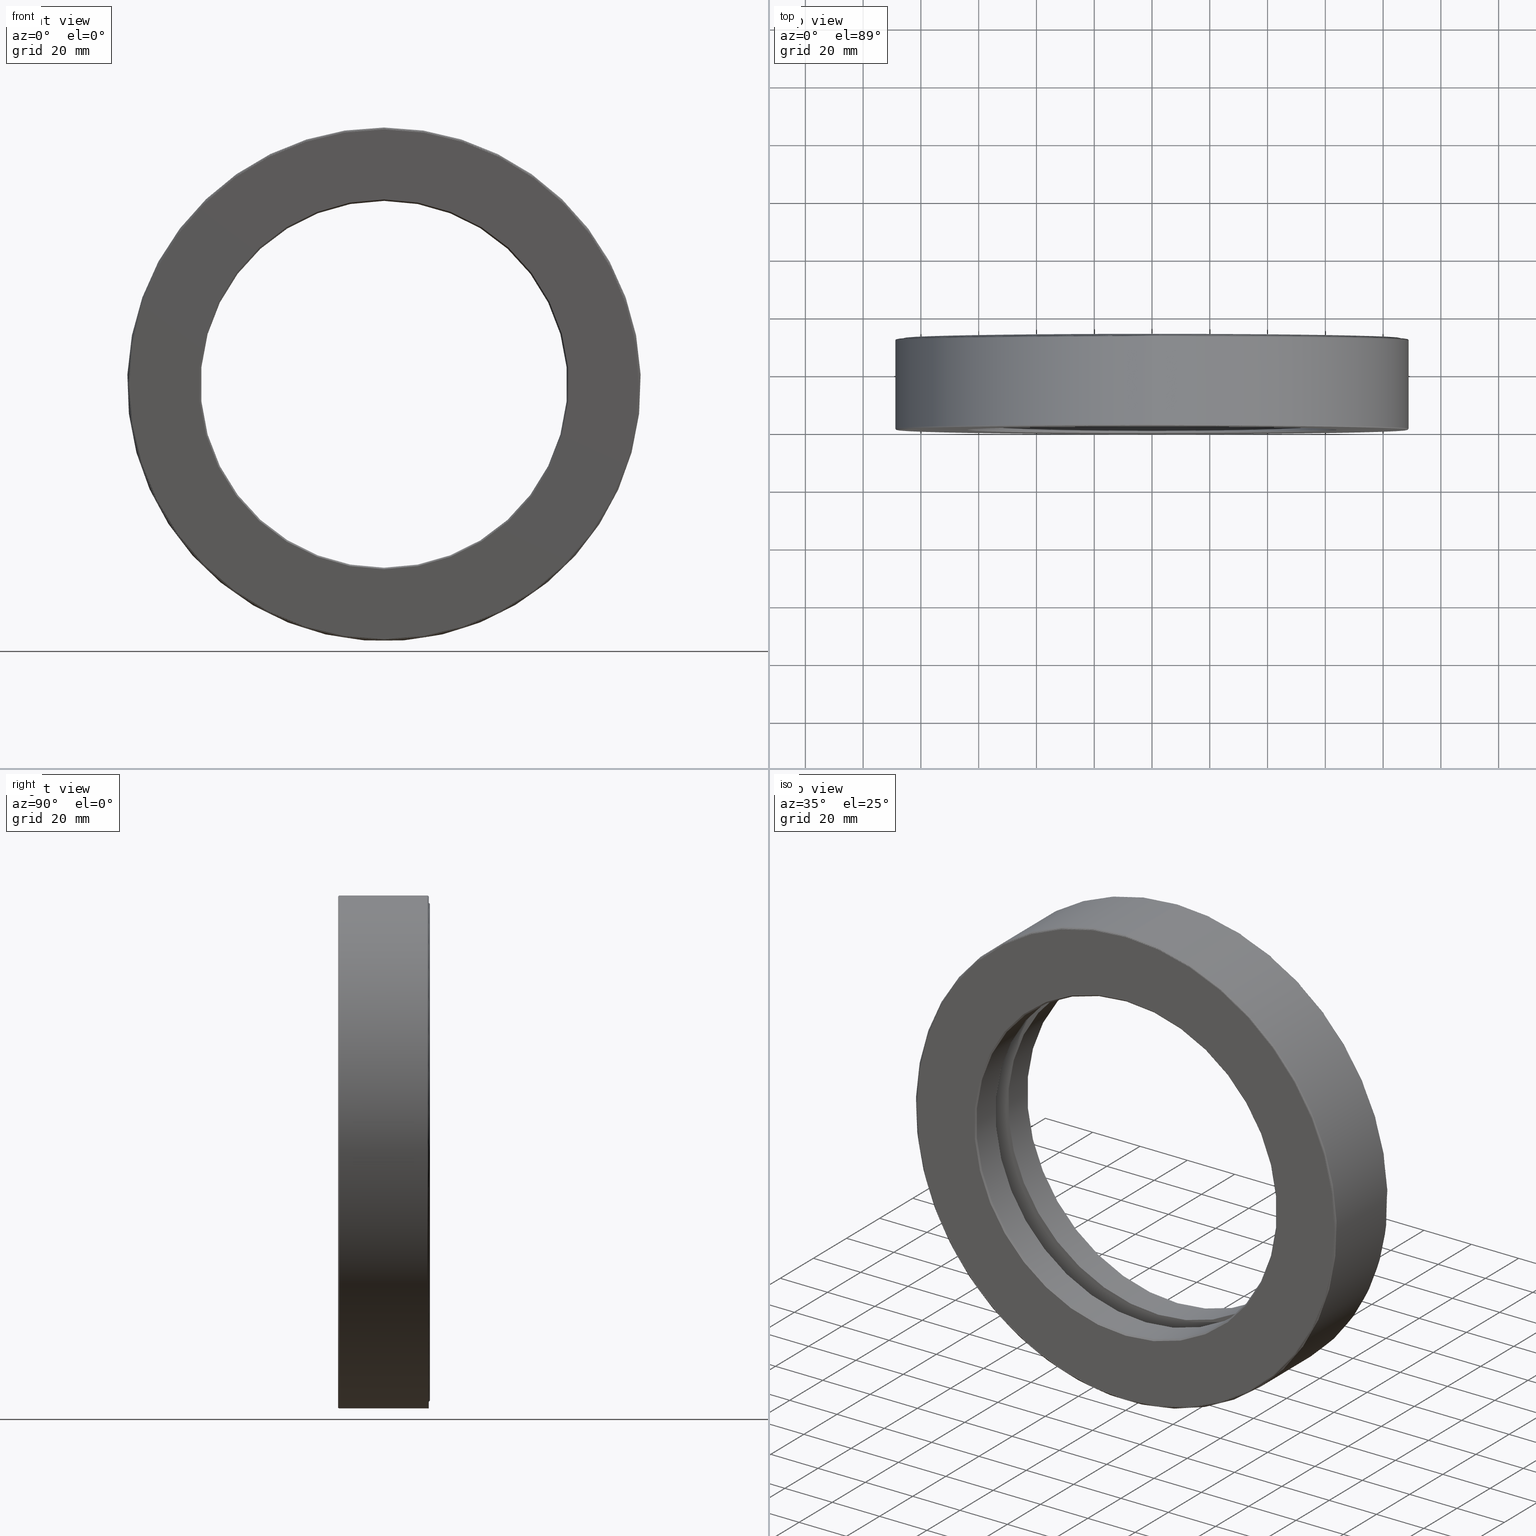
[diagram: canonical four-view strip — front | top / right | iso, engineering-drawing reading convention]
A machine part, canonical four-view strip (front | top / right | iso — engineering-drawing reading convention). The complete STEP part file that produces these views, byte-faithful:
ISO-10303-21;
HEADER;
FILE_DESCRIPTION (( 'STEP AP203' ),
    '1' );
FILE_NAME ('T-100-54.step',
    '2016-06-29T18:27:45',
    ( '' ),
    ( '' ),
    'SwSTEP 2.0',
    'SolidWorks 2016',
    '' );
FILE_SCHEMA (( 'CONFIG_CONTROL_DESIGN' ));
ENDSEC;

DATA;
#1 = EDGE_CURVE ( 'NONE', #511, #511, #290, .T. ) ;
#2 = CARTESIAN_POINT ( 'NONE',  ( 0.0000000000000000000, 0.7749999999999998000, 2.500000000000000000 ) ) ;
#3 = CIRCLE ( 'NONE', #49, 3.480000000000000000 ) ;
#4 = AXIS2_PLACEMENT_3D ( 'NONE', #592, #78, #175 ) ;
#5 =( CONVERSION_BASED_UNIT ( 'INCH', #418 ) LENGTH_UNIT ( ) NAMED_UNIT ( #334 ) );
#6 = ORIENTED_EDGE ( 'NONE', *, *, #187, .F. ) ;
#7 = ORIENTED_EDGE ( 'NONE', *, *, #490, .F. ) ;
#8 = CIRCLE ( 'NONE', #207, 3.420999999999999400 ) ;
#9 = CIRCLE ( 'NONE', #248, 3.484999999999999400 ) ;
#10 = CC_DESIGN_APPROVAL ( #588, ( #551 ) ) ;
#11 = EDGE_CURVE ( 'NONE', #58, #58, #204, .T. ) ;
#12 = ORIENTED_EDGE ( 'NONE', *, *, #11, .T. ) ;
#13 = CARTESIAN_POINT ( 'NONE',  ( -3.220999999999999200, 0.6249999999999997800, 0.0000000000000000000 ) ) ;
#14 = CALENDAR_DATE ( 2016, 29, 6 ) ;
#15 = APPROVAL_DATE_TIME ( #252, #588 ) ;
#16 = SECURITY_CLASSIFICATION ( '', '', #520 ) ;
#17 = AXIS2_PLACEMENT_3D ( 'NONE', #43, #243, #470 ) ;
#18 = DIRECTION ( 'NONE',  ( -0.0000000000000000000, 1.000000000000000000, 0.0000000000000000000 ) ) ;
#19 = EDGE_LOOP ( 'NONE', ( #370 ) ) ;
#20 = AXIS2_PLACEMENT_3D ( 'NONE', #461, #412, #320 ) ;
#21 = FACE_OUTER_BOUND ( 'NONE', #280, .T. ) ;
#22 = EDGE_CURVE ( 'NONE', #35, #35, #323, .T. ) ;
#23 = VERTEX_POINT ( 'NONE', #47 ) ;
#24 = DIRECTION ( 'NONE',  ( 0.0000000000000000000, -1.000000000000000000, 0.0000000000000000000 ) ) ;
#25 = DIRECTION ( 'NONE',  ( 0.0000000000000000000, 0.0000000000000000000, 1.000000000000000000 ) ) ;
#26 = ADVANCED_FACE ( 'NONE', ( #345, #200 ), #249, .T. ) ;
#27 = DIRECTION ( 'NONE',  ( -1.000000000000000000, 0.0000000000000000000, 3.491481338843134500E-015 ) ) ;
#28 = PERSON_AND_ORGANIZATION ( #578, #82 ) ;
#29 = DIRECTION ( 'NONE',  ( -0.0000000000000000000, 1.000000000000000000, 0.0000000000000000000 ) ) ;
#30 = EDGE_LOOP ( 'NONE', ( #229 ) ) ;
#31 = ORIENTED_EDGE ( 'NONE', *, *, #420, .T. ) ;
#32 = ADVANCED_FACE ( 'NONE', ( #358, #486 ), #115, .F. ) ;
#33 = ORIENTED_EDGE ( 'NONE', *, *, #267, .F. ) ;
#34 = CARTESIAN_POINT ( 'NONE',  ( 0.0000000000000000000, -1.536664496436147000E-016, 0.0000000000000000000 ) ) ;
#35 = VERTEX_POINT ( 'NONE', #38 ) ;
#36 = DIRECTION ( 'NONE',  ( 0.0000000000000000000, 0.0000000000000000000, 1.000000000000000000 ) ) ;
#37 = ADVANCED_FACE ( 'NONE', ( #157, #339 ), #197, .F. ) ;
#38 = CARTESIAN_POINT ( 'NONE',  ( 0.0000000000000000000, 1.215000000000000500, 3.419999999999999000 ) ) ;
#39 = CC_DESIGN_PERSON_AND_ORGANIZATION_ASSIGNMENT ( #28, #156, ( #551 ) ) ;
#40 = ADVANCED_FACE ( 'NONE', ( #310, #81 ), #192, .T. ) ;
#41 = ORIENTED_EDGE ( 'NONE', *, *, #524, .F. ) ;
#42 = APPLICATION_CONTEXT ( 'configuration controlled 3d designs of mechanical parts and assemblies' ) ;
#43 = CARTESIAN_POINT ( 'NONE',  ( 0.0000000000000000000, 0.0000000000000000000, 0.0000000000000000000 ) ) ;
#44 = VERTEX_POINT ( 'NONE', #50 ) ;
#45 = CARTESIAN_POINT ( 'NONE',  ( 0.0000000000000000000, 1.249999999999999800, 3.384999999999998900 ) ) ;
#46 = DIRECTION ( 'NONE',  ( 0.0000000000000000000, 0.0000000000000000000, 1.000000000000000000 ) ) ;
#47 = CARTESIAN_POINT ( 'NONE',  ( 0.0000000000000000000, 0.004999999999999530900, 3.480000000000000000 ) ) ;
#48 = ORIENTED_EDGE ( 'NONE', *, *, #399, .T. ) ;
#49 = AXIS2_PLACEMENT_3D ( 'NONE', #464, #512, #563 ) ;
#50 = CARTESIAN_POINT ( 'NONE',  ( 0.0000000000000000000, -1.520092225959140700E-016, 3.480000000000000000 ) ) ;
#51 = CIRCLE ( 'NONE', #379, 2.500000000000000000 ) ;
#52 = CIRCLE ( 'NONE', #148, 2.500000000000000000 ) ;
#53 = AXIS2_PLACEMENT_3D ( 'NONE', #134, #359, #181 ) ;
#54 = EDGE_CURVE ( 'NONE', #23, #23, #3, .T. ) ;
#55 = MANIFOLD_SOLID_BREP ( 'BALLS[2]', #155 ) ;
#56 = ORIENTED_EDGE ( 'NONE', *, *, #596, .T. ) ;
#57 = CYLINDRICAL_SURFACE ( 'NONE', #186, 3.480000000000000000 ) ;
#58 = VERTEX_POINT ( 'NONE', #411 ) ;
#59 = DIRECTION ( 'NONE',  ( -0.0000000000000000000, 1.000000000000000000, -0.0000000000000000000 ) ) ;
#60 = DIRECTION ( 'NONE',  ( 0.0000000000000000000, 0.0000000000000000000, -1.000000000000000000 ) ) ;
#61 = MANIFOLD_SOLID_BREP ( 'BALLS[1]', #332 ) ;
#62 = CARTESIAN_POINT ( 'NONE',  ( 0.0000000000000000000, 1.162000000000000100, 0.0000000000000000000 ) ) ;
#63 = ORIENTED_EDGE ( 'NONE', *, *, #554, .T. ) ;
#64 = AXIS2_PLACEMENT_3D ( 'NONE', #442, #586, #402 ) ;
#65 = ADVANCED_FACE ( 'NONE', ( #227, #73 ), #560, .T. ) ;
#66 = CARTESIAN_POINT ( 'NONE',  ( 0.0000000000000000000, 0.01500000000000024900, 0.0000000000000000000 ) ) ;
#67 = FACE_OUTER_BOUND ( 'NONE', #553, .T. ) ;
#68 = FACE_OUTER_BOUND ( 'NONE', #130, .T. ) ;
#69 = DIRECTION ( 'NONE',  ( -0.0000000000000000000, 1.000000000000000000, -0.0000000000000000000 ) ) ;
#70 = DIRECTION ( 'NONE',  ( 0.0000000000000000000, 0.0000000000000000000, 1.000000000000000000 ) ) ;
#71 = EDGE_LOOP ( 'NONE', ( #48 ) ) ;
#72 = AXIS2_PLACEMENT_3D ( 'NONE', #178, #226, #540 ) ;
#73 = FACE_OUTER_BOUND ( 'NONE', #100, .T. ) ;
#74 = EDGE_CURVE ( 'NONE', #475, #475, #521, .T. ) ;
#75 = FACE_OUTER_BOUND ( 'NONE', #530, .T. ) ;
#76 = CARTESIAN_POINT ( 'NONE',  ( 1.124606139241373000E-014, 0.6249999999999997800, 3.220999999999999200 ) ) ;
#77 = DESIGN_CONTEXT ( 'detailed design', #42, 'design' ) ;
#78 = DIRECTION ( 'NONE',  ( -0.0000000000000000000, 1.000000000000000000, -0.0000000000000000000 ) ) ;
#79 = ORIENTED_EDGE ( 'NONE', *, *, #117, .F. ) ;
#80 = PLANE ( 'NONE',  #234 ) ;
#81 = FACE_OUTER_BOUND ( 'NONE', #572, .T. ) ;
#82 = ORGANIZATION ( 'UNSPECIFIED', 'UNSPECIFIED', '' ) ;
#83 = AXIS2_PLACEMENT_3D ( 'NONE', #415, #517, #419 ) ;
#84 = DIRECTION ( 'NONE',  ( -0.0000000000000000000, 1.000000000000000000, -0.0000000000000000000 ) ) ;
#85 = COORDINATED_UNIVERSAL_TIME_OFFSET ( 5, 0, .BEHIND. ) ;
#86 = DIRECTION ( 'NONE',  ( -0.0000000000000000000, 1.000000000000000000, -0.0000000000000000000 ) ) ;
#87 = AXIS2_PLACEMENT_3D ( 'NONE', #546, #276, #360 ) ;
#88 = DIRECTION ( 'NONE',  ( -0.0000000000000000000, 1.000000000000000000, 0.0000000000000000000 ) ) ;
#89 = ORIENTED_EDGE ( 'NONE', *, *, #117, .T. ) ;
#90 = FACE_OUTER_BOUND ( 'NONE', #606, .T. ) ;
#91 = DIRECTION ( 'NONE',  ( -0.0000000000000000000, 1.000000000000000000, -0.0000000000000000000 ) ) ;
#92 = ADVANCED_FACE ( 'NONE', ( #67, #139 ), #103, .T. ) ;
#93 = FACE_OUTER_BOUND ( 'NONE', #161, .T. ) ;
#94 = DIRECTION ( 'NONE',  ( -0.0000000000000000000, 1.000000000000000000, -0.0000000000000000000 ) ) ;
#95 =( LENGTH_UNIT ( ) NAMED_UNIT ( * ) SI_UNIT ( $, .METRE. ) );
#96 = DIRECTION ( 'NONE',  ( 0.0000000000000000000, -0.0000000000000000000, -1.000000000000000000 ) ) ;
#97 = PERSON_AND_ORGANIZATION ( #578, #82 ) ;
#98 = DIRECTION ( 'NONE',  ( -0.0000000000000000000, 1.000000000000000000, -0.0000000000000000000 ) ) ;
#99 = PRODUCT_RELATED_PRODUCT_CATEGORY ( 'detail', '', ( #479 ) ) ;
#100 = EDGE_LOOP ( 'NONE', ( #316 ) ) ;
#101 = CARTESIAN_POINT ( 'NONE',  ( 0.0000000000000000000, 0.7749999999999998000, 3.420999999999999400 ) ) ;
#102 = DIRECTION ( 'NONE',  ( -0.0000000000000000000, 1.000000000000000000, -0.0000000000000000000 ) ) ;
#103 = CONICAL_SURFACE ( 'NONE', #83, 3.484999999999999400, 0.7853981633974249600 ) ;
#104 = AXIS2_PLACEMENT_3D ( 'NONE', #404, #491, #25 ) ;
#105 = PERSON_AND_ORGANIZATION_ROLE ( 'design_supplier' ) ;
#106 = CARTESIAN_POINT ( 'NONE',  ( 0.0000000000000000000, 0.7749999999999998000, 0.0000000000000000000 ) ) ;
#107 = CARTESIAN_POINT ( 'NONE',  ( 0.0000000000000000000, 1.215000000000000500, 3.480000000000000000 ) ) ;
#108 = ORIENTED_EDGE ( 'NONE', *, *, #596, .F. ) ;
#109 = EDGE_LOOP ( 'NONE', ( #485 ) ) ;
#110 = CIRCLE ( 'NONE', #4, 3.020999999999999500 ) ;
#111 = AXIS2_PLACEMENT_3D ( 'NONE', #152, #102, #154 ) ;
#112 = AXIS2_PLACEMENT_3D ( 'NONE', #231, #29, #366 ) ;
#113 = EDGE_LOOP ( 'NONE', ( #473 ) ) ;
#114 = CARTESIAN_POINT ( 'NONE',  ( 0.0000000000000000000, 1.230000000000000200, 0.0000000000000000000 ) ) ;
#115 = CYLINDRICAL_SURFACE ( 'NONE', #448, 2.500000000000000000 ) ;
#116 = DIRECTION ( 'NONE',  ( 0.0000000000000000000, 0.0000000000000000000, 1.000000000000000000 ) ) ;
#117 = EDGE_CURVE ( 'NONE', #205, #205, #362, .T. ) ;
#118 = LOCAL_TIME ( 14, 27, 45.00000000000000000, #127 ) ;
#119 = DIRECTION ( 'NONE',  ( 0.0000000000000000000, 0.0000000000000000000, 1.000000000000000000 ) ) ;
#120 = DIRECTION ( 'NONE',  ( 0.0000000000000000000, -0.0000000000000000000, -1.000000000000000000 ) ) ;
#121 = AXIS2_PLACEMENT_3D ( 'NONE', #529, #18, #441 ) ;
#122 = ORIENTED_EDGE ( 'NONE', *, *, #54, .T. ) ;
#123 = DIRECTION ( 'NONE',  ( 0.0000000000000000000, -1.000000000000000000, 0.0000000000000000000 ) ) ;
#124 = FACE_BOUND ( 'NONE', #285, .T. ) ;
#125 = CYLINDRICAL_SURFACE ( 'NONE', #295, 3.480000000000000000 ) ;
#126 = DIRECTION ( 'NONE',  ( -0.0000000000000000000, 1.000000000000000000, -0.0000000000000000000 ) ) ;
#127 = COORDINATED_UNIVERSAL_TIME_OFFSET ( 5, 0, .BEHIND. ) ;
#128 = CARTESIAN_POINT ( 'NONE',  ( -1.099684573720800200E-015, 0.4749999999999999800, 0.0000000000000000000 ) ) ;
#129 = DIRECTION ( 'NONE',  ( 0.0000000000000000000, 0.0000000000000000000, 1.000000000000000000 ) ) ;
#130 = EDGE_LOOP ( 'NONE', ( #308 ) ) ;
#131 = PERSON_AND_ORGANIZATION ( #578, #82 ) ;
#132 = DIRECTION ( 'NONE',  ( 0.0000000000000000000, 0.0000000000000000000, 1.000000000000000000 ) ) ;
#133 = ADVANCED_FACE ( 'NONE', ( #183, #565 ), #57, .F. ) ;
#134 = CARTESIAN_POINT ( 'NONE',  ( 0.0000000000000000000, 0.01999999999999978500, 0.0000000000000000000 ) ) ;
#135 = AXIS2_PLACEMENT_3D ( 'NONE', #143, #98, #373 ) ;
#136 = DIRECTION ( 'NONE',  ( 0.0000000000000000000, 0.0000000000000000000, 1.000000000000000000 ) ) ;
#137 = EDGE_LOOP ( 'NONE', ( #108 ) ) ;
#138 = DIRECTION ( 'NONE',  ( 0.0000000000000000000, 0.0000000000000000000, 1.000000000000000000 ) ) ;
#139 = FACE_BOUND ( 'NONE', #593, .T. ) ;
#140 = VERTEX_POINT ( 'NONE', #423 ) ;
#141 = DIRECTION ( 'NONE',  ( 0.0000000000000000000, 0.0000000000000000000, 1.000000000000000000 ) ) ;
#142 = ADVANCED_FACE ( 'NONE', ( #124, #242 ), #344, .T. ) ;
#143 = CARTESIAN_POINT ( 'NONE',  ( 0.0000000000000000000, 0.4749999999999999800, 0.0000000000000000000 ) ) ;
#144 = AXIS2_PLACEMENT_3D ( 'NONE', #492, #272, #595 ) ;
#145 = EDGE_CURVE ( 'NONE', #201, #201, #594, .T. ) ;
#146 = APPROVAL_ROLE ( '' ) ;
#147 = ORIENTED_EDGE ( 'NONE', *, *, #564, .T. ) ;
#148 = AXIS2_PLACEMENT_3D ( 'NONE', #454, #363, #138 ) ;
#149 = APPLICATION_CONTEXT ( 'configuration controlled 3d designs of mechanical parts and assemblies' ) ;
#150 = APPROVAL_PERSON_ORGANIZATION ( #494, #458, #328 ) ;
#151 = TOROIDAL_SURFACE ( 'NONE', #533, 3.220999999999999200, 0.2500000000000000600 ) ;
#152 = CARTESIAN_POINT ( 'NONE',  ( 0.0000000000000000000, 0.0000000000000000000, 0.0000000000000000000 ) ) ;
#153 = DATE_TIME_ROLE ( 'classification_date' ) ;
#154 = DIRECTION ( 'NONE',  ( 0.0000000000000000000, 0.0000000000000000000, 1.000000000000000000 ) ) ;
#155 = CLOSED_SHELL ( 'NONE', ( #503 ) ) ;
#156 = PERSON_AND_ORGANIZATION_ROLE ( 'creator' ) ;
#157 = FACE_OUTER_BOUND ( 'NONE', #395, .T. ) ;
#158 = AXIS2_PLACEMENT_3D ( 'NONE', #537, #313, #132 ) ;
#159 = VERTEX_POINT ( 'NONE', #281 ) ;
#160 = TOROIDAL_SURFACE ( 'NONE', #541, 3.220999999999999200, 0.2499999999999998600 ) ;
#161 = EDGE_LOOP ( 'NONE', ( #519 ) ) ;
#162 = ADVANCED_FACE ( 'NONE', ( #555, #264 ), #165, .T. ) ;
#163 = CC_DESIGN_PERSON_AND_ORGANIZATION_ASSIGNMENT ( #539, #421, ( #16 ) ) ;
#164 = EDGE_CURVE ( 'NONE', #384, #384, #51, .T. ) ;
#165 = PLANE ( 'NONE',  #121 ) ;
#166 = DIRECTION ( 'NONE',  ( 0.0000000000000000000, -1.000000000000000000, 0.0000000000000000000 ) ) ;
#167 =( GEOMETRIC_REPRESENTATION_CONTEXT ( 3 ) GLOBAL_UNCERTAINTY_ASSIGNED_CONTEXT ( ( #293 ) ) GLOBAL_UNIT_ASSIGNED_CONTEXT ( ( #5, #241, #380 ) ) REPRESENTATION_CONTEXT ( 'NONE', 'WORKASPACE' ) );
#168 = CLOSED_SHELL ( 'NONE', ( #256 ) ) ;
#169 = CARTESIAN_POINT ( 'NONE',  ( 0.0000000000000000000, 0.7749999999999998000, 0.0000000000000000000 ) ) ;
#170 = ORIENTED_EDGE ( 'NONE', *, *, #11, .F. ) ;
#171 = EDGE_LOOP ( 'NONE', ( #268 ) ) ;
#172 = VERTEX_POINT ( 'NONE', #292 ) ;
#173 = DIRECTION ( 'NONE',  ( -0.0000000000000000000, 1.000000000000000000, -0.0000000000000000000 ) ) ;
#174 = MANIFOLD_SOLID_BREP ( 'Revolve3', #168 ) ;
#175 = DIRECTION ( 'NONE',  ( 0.0000000000000000000, 0.0000000000000000000, 1.000000000000000000 ) ) ;
#176 = CYLINDRICAL_SURFACE ( 'NONE', #158, 2.500000000000000000 ) ;
#177 = AXIS2_PLACEMENT_3D ( 'NONE', #333, #279, #371 ) ;
#178 = CARTESIAN_POINT ( 'NONE',  ( 0.0000000000000000000, 1.249999999999999800, 0.0000000000000000000 ) ) ;
#179 = FACE_OUTER_BOUND ( 'NONE', #299, .T. ) ;
#180 = CC_DESIGN_PERSON_AND_ORGANIZATION_ASSIGNMENT ( #97, #105, ( #551 ) ) ;
#181 = DIRECTION ( 'NONE',  ( 0.0000000000000000000, 0.0000000000000000000, 1.000000000000000000 ) ) ;
#182 = ORIENTED_EDGE ( 'NONE', *, *, #145, .F. ) ;
#183 = FACE_OUTER_BOUND ( 'NONE', #431, .T. ) ;
#184 = FACE_BOUND ( 'NONE', #451, .T. ) ;
#185 = ADVANCED_FACE ( 'NONE', ( #469, #90 ), #581, .F. ) ;
#186 = AXIS2_PLACEMENT_3D ( 'NONE', #263, #576, #392 ) ;
#187 = EDGE_CURVE ( 'NONE', #159, #159, #437, .T. ) ;
#188 = DIRECTION ( 'NONE',  ( -0.0000000000000000000, 1.000000000000000000, -0.0000000000000000000 ) ) ;
#189 = FACE_OUTER_BOUND ( 'NONE', #30, .T. ) ;
#190 = EDGE_LOOP ( 'NONE', ( #33 ) ) ;
#191 = DIRECTION ( 'NONE',  ( 0.0000000000000000000, 0.0000000000000000000, 1.000000000000000000 ) ) ;
#192 = CYLINDRICAL_SURFACE ( 'NONE', #17, 3.472999999999998500 ) ;
#193 = VERTEX_POINT ( 'NONE', #330 ) ;
#194 = ADVANCED_FACE ( 'NONE', ( #219, #478 ), #301, .F. ) ;
#195 = EDGE_CURVE ( 'NONE', #232, #232, #317, .T. ) ;
#196 = APPLICATION_PROTOCOL_DEFINITION ( 'international standard', 'config_control_design', 1994, #42 ) ;
#197 = PLANE ( 'NONE',  #353 ) ;
#198 = ORIENTED_EDGE ( 'NONE', *, *, #399, .F. ) ;
#199 = ADVANCED_BREP_SHAPE_REPRESENTATION ( 'T-100-54', ( #314, #298, #174, #61, #55, #505, #278 ), #167 ) ;
#200 = FACE_BOUND ( 'NONE', #71, .T. ) ;
#201 = VERTEX_POINT ( 'NONE', #107 ) ;
#202 = DIRECTION ( 'NONE',  ( 1.000000000000000000, 0.0000000000000000000, 0.0000000000000000000 ) ) ;
#203 = ORIENTED_EDGE ( 'NONE', *, *, #564, .F. ) ;
#204 = CIRCLE ( 'NONE', #111, 2.520000000000000000 ) ;
#205 = VERTEX_POINT ( 'NONE', #567 ) ;
#206 = CONICAL_SURFACE ( 'NONE', #144, 2.500000000000000000, 0.7853981633974482800 ) ;
#207 = AXIS2_PLACEMENT_3D ( 'NONE', #266, #126, #70 ) ;
#208 = DIRECTION ( 'NONE',  ( 0.0000000000000000000, 0.0000000000000000000, 1.000000000000000000 ) ) ;
#209 = ORIENTED_EDGE ( 'NONE', *, *, #575, .F. ) ;
#210 = DIRECTION ( 'NONE',  ( -0.0000000000000000000, 1.000000000000000000, -0.0000000000000000000 ) ) ;
#211 = ORIENTED_EDGE ( 'NONE', *, *, #257, .F. ) ;
#212 = CARTESIAN_POINT ( 'NONE',  ( 0.0000000000000000000, 0.0000000000000000000, 0.0000000000000000000 ) ) ;
#213 = DATE_AND_TIME ( #303, #223 ) ;
#214 = DIRECTION ( 'NONE',  ( 0.0000000000000000000, 0.0000000000000000000, 1.000000000000000000 ) ) ;
#215 = AXIS2_PLACEMENT_3D ( 'NONE', #597, #84, #136 ) ;
#216 = EDGE_CURVE ( 'NONE', #601, #601, #409, .T. ) ;
#217 = CARTESIAN_POINT ( 'NONE',  ( 0.0000000000000000000, 1.249999999999999800, 0.0000000000000000000 ) ) ;
#218 = CLOSED_SHELL ( 'NONE', ( #65, #413, #142, #32, #497, #162, #315, #40 ) ) ;
#219 = FACE_OUTER_BOUND ( 'NONE', #577, .T. ) ;
#220 = VERTEX_POINT ( 'NONE', #45 ) ;
#221 = CARTESIAN_POINT ( 'NONE',  ( 0.0000000000000000000, 0.7749999999999998000, 0.0000000000000000000 ) ) ;
#222 = DIRECTION ( 'NONE',  ( 1.000000000000000000, 0.0000000000000000000, 0.0000000000000000000 ) ) ;
#223 = LOCAL_TIME ( 14, 27, 45.00000000000000000, #377 ) ;
#224 = ADVANCED_FACE ( 'NONE', ( #544, #600 ), #584, .F. ) ;
#225 = EDGE_LOOP ( 'NONE', ( #331 ) ) ;
#226 = DIRECTION ( 'NONE',  ( -0.0000000000000000000, 1.000000000000000000, -0.0000000000000000000 ) ) ;
#227 = FACE_BOUND ( 'NONE', #509, .T. ) ;
#228 = CARTESIAN_POINT ( 'NONE',  ( 0.0000000000000000000, 1.250000000000000000, 2.520000000000000000 ) ) ;
#229 = ORIENTED_EDGE ( 'NONE', *, *, #250, .T. ) ;
#230 = FACE_OUTER_BOUND ( 'NONE', #338, .T. ) ;
#231 = CARTESIAN_POINT ( 'NONE',  ( -6.344590795556439300E-032, -7.576609669928236400E-017, 0.0000000000000000000 ) ) ;
#232 = VERTEX_POINT ( 'NONE', #2 ) ;
#233 = FACE_OUTER_BOUND ( 'NONE', #288, .T. ) ;
#234 = AXIS2_PLACEMENT_3D ( 'NONE', #498, #88, #36 ) ;
#235 = DIRECTION ( 'NONE',  ( 0.0000000000000000000, 0.0000000000000000000, 1.000000000000000000 ) ) ;
#236 = AXIS2_PLACEMENT_3D ( 'NONE', #604, #424, #326 ) ;
#237 = PERSON_AND_ORGANIZATION ( #578, #82 ) ;
#238 = DIRECTION ( 'NONE',  ( 0.0000000000000000000, 0.0000000000000000000, 1.000000000000000000 ) ) ;
#239 = DIRECTION ( 'NONE',  ( -0.0000000000000000000, 1.000000000000000000, -0.0000000000000000000 ) ) ;
#240 = ORIENTED_EDGE ( 'NONE', *, *, #250, .F. ) ;
#241 =( NAMED_UNIT ( * ) PLANE_ANGLE_UNIT ( ) SI_UNIT ( $, .RADIAN. ) );
#242 = FACE_OUTER_BOUND ( 'NONE', #493, .T. ) ;
#243 = DIRECTION ( 'NONE',  ( -0.0000000000000000000, 1.000000000000000000, -0.0000000000000000000 ) ) ;
#244 = MECHANICAL_CONTEXT ( 'NONE', #149, 'mechanical' ) ;
#245 = CARTESIAN_POINT ( 'NONE',  ( 0.0000000000000000000, 0.7749999999999998000, 0.0000000000000000000 ) ) ;
#246 = APPLICATION_PROTOCOL_DEFINITION ( 'international standard', 'config_control_design', 1994, #149 ) ;
#247 = EDGE_LOOP ( 'NONE', ( #518 ) ) ;
#248 = AXIS2_PLACEMENT_3D ( 'NONE', #34, #86, #191 ) ;
#249 = CONICAL_SURFACE ( 'NONE', #236, 3.474999999999999200, 0.7853981633975430900 ) ;
#250 = EDGE_CURVE ( 'NONE', #534, #534, #427, .T. ) ;
#251 = VERTEX_POINT ( 'NONE', #335 ) ;
#252 = DATE_AND_TIME ( #352, #118 ) ;
#253 = FACE_BOUND ( 'NONE', #137, .T. ) ;
#254 = DIRECTION ( 'NONE',  ( -0.0000000000000000000, 1.000000000000000000, -0.0000000000000000000 ) ) ;
#255 = DATE_AND_TIME ( #14, #372 ) ;
#256 = ADVANCED_FACE ( 'NONE', ( ), #349, .T. ) ;
#257 = EDGE_CURVE ( 'NONE', #350, #350, #8, .T. ) ;
#258 = CARTESIAN_POINT ( 'NONE',  ( 0.0000000000000000000, 1.215000000000000500, 0.0000000000000000000 ) ) ;
#259 = APPROVAL_PERSON_ORGANIZATION ( #237, #336, #287 ) ;
#260 = AXIS2_PLACEMENT_3D ( 'NONE', #13, #60, #222 ) ;
#261 = CLOSED_SHELL ( 'NONE', ( #456, #368, #133, #37, #194, #224, #558, #510, #92, #547, #552, #26, #582, #394, #322, #185 ) ) ;
#262 = EDGE_LOOP ( 'NONE', ( #12 ) ) ;
#263 = CARTESIAN_POINT ( 'NONE',  ( 0.0000000000000000000, 0.0000000000000000000, 0.0000000000000000000 ) ) ;
#264 = FACE_BOUND ( 'NONE', #393, .T. ) ;
#265 = VERTEX_POINT ( 'NONE', #467 ) ;
#266 = CARTESIAN_POINT ( 'NONE',  ( 0.0000000000000000000, 0.7749999999999998000, 0.0000000000000000000 ) ) ;
#267 = EDGE_CURVE ( 'NONE', #220, #220, #474, .T. ) ;
#268 = ORIENTED_EDGE ( 'NONE', *, *, #74, .T. ) ;
#269 = COORDINATED_UNIVERSAL_TIME_OFFSET ( 5, 0, .BEHIND. ) ;
#270 = DIRECTION ( 'NONE',  ( 0.0000000000000000000, -1.000000000000000000, 0.0000000000000000000 ) ) ;
#271 = AXIS2_PLACEMENT_3D ( 'NONE', #318, #504, #556 ) ;
#272 = DIRECTION ( 'NONE',  ( 0.0000000000000000000, -1.000000000000000000, 0.0000000000000000000 ) ) ;
#273 = CARTESIAN_POINT ( 'NONE',  ( 0.0000000000000000000, 1.235000000000000100, 0.0000000000000000000 ) ) ;
#274 = ORIENTED_EDGE ( 'NONE', *, *, #257, .T. ) ;
#275 = EDGE_LOOP ( 'NONE', ( #203 ) ) ;
#276 = DIRECTION ( 'NONE',  ( -0.0000000000000000000, 1.000000000000000000, -0.0000000000000000000 ) ) ;
#277 = EDGE_LOOP ( 'NONE', ( #571 ) ) ;
#278 = AXIS2_PLACEMENT_3D ( 'NONE', #549, #238, #202 ) ;
#279 = DIRECTION ( 'NONE',  ( -0.0000000000000000000, 1.000000000000000000, -0.0000000000000000000 ) ) ;
#280 = EDGE_LOOP ( 'NONE', ( #7 ) ) ;
#281 = CARTESIAN_POINT ( 'NONE',  ( 0.0000000000000000000, 1.162000000000000100, 3.472999999999998500 ) ) ;
#282 = CARTESIAN_POINT ( 'NONE',  ( 0.0000000000000000000, 1.230000000000000200, 2.500000000000000000 ) ) ;
#283 = LOCAL_TIME ( 14, 27, 45.00000000000000000, #449 ) ;
#284 = CARTESIAN_POINT ( 'NONE',  ( 0.0000000000000000000, 0.01999999999999978500, 2.500000000000000000 ) ) ;
#285 = EDGE_LOOP ( 'NONE', ( #382 ) ) ;
#286 = CC_DESIGN_PERSON_AND_ORGANIZATION_ASSIGNMENT ( #526, #325, ( #337 ) ) ;
#287 = APPROVAL_ROLE ( '' ) ;
#288 = EDGE_LOOP ( 'NONE', ( #31 ) ) ;
#289 = DIRECTION ( 'NONE',  ( 0.0000000000000000000, 0.0000000000000000000, 1.000000000000000000 ) ) ;
#290 = CIRCLE ( 'NONE', #327, 2.520000000000000000 ) ;
#291 = FACE_OUTER_BOUND ( 'NONE', #406, .T. ) ;
#292 = CARTESIAN_POINT ( 'NONE',  ( 0.0000000000000000000, 0.4750000000000000300, 3.020999999999999500 ) ) ;
#293 = UNCERTAINTY_MEASURE_WITH_UNIT (LENGTH_MEASURE( 1.000000000000000100E-005 ), #5, 'distance_accuracy_value', 'NONE');
#294 = ORIENTED_EDGE ( 'NONE', *, *, #589, .T. ) ;
#295 = AXIS2_PLACEMENT_3D ( 'NONE', #506, #543, #141 ) ;
#296 = DIRECTION ( 'NONE',  ( 0.0000000000000000000, 0.0000000000000000000, 1.000000000000000000 ) ) ;
#297 = FACE_OUTER_BOUND ( 'NONE', #396, .T. ) ;
#298 = MANIFOLD_SOLID_BREP ( 'Revolve2[2]', #218 ) ;
#299 = EDGE_LOOP ( 'NONE', ( #89 ) ) ;
#300 = DIRECTION ( 'NONE',  ( -0.0000000000000000000, 1.000000000000000000, -0.0000000000000000000 ) ) ;
#301 = CYLINDRICAL_SURFACE ( 'NONE', #568, 3.419999999999999000 ) ;
#302 = CIRCLE ( 'NONE', #135, 3.420999999999999400 ) ;
#303 = CALENDAR_DATE ( 2016, 29, 6 ) ;
#304 = DIRECTION ( 'NONE',  ( -0.0000000000000000000, 1.000000000000000000, -0.0000000000000000000 ) ) ;
#305 = CC_DESIGN_PERSON_AND_ORGANIZATION_ASSIGNMENT ( #131, #559, ( #479 ) ) ;
#306 = DIRECTION ( 'NONE',  ( -0.0000000000000000000, 1.000000000000000000, -0.0000000000000000000 ) ) ;
#307 = SPHERICAL_SURFACE ( 'NONE', #471, 0.2499999999999998100 ) ;
#308 = ORIENTED_EDGE ( 'NONE', *, *, #216, .F. ) ;
#309 = DIRECTION ( 'NONE',  ( 1.047444401652940300E-014, 0.0000000000000000000, 1.000000000000000000 ) ) ;
#310 = FACE_OUTER_BOUND ( 'NONE', #171, .T. ) ;
#311 = FACE_OUTER_BOUND ( 'NONE', #19, .T. ) ;
#312 = FACE_OUTER_BOUND ( 'NONE', #536, .T. ) ;
#313 = DIRECTION ( 'NONE',  ( -0.0000000000000000000, 1.000000000000000000, -0.0000000000000000000 ) ) ;
#314 = MANIFOLD_SOLID_BREP ( 'Revolve2[1]', #261 ) ;
#315 = ADVANCED_FACE ( 'NONE', ( #585, #570 ), #508, .T. ) ;
#316 = ORIENTED_EDGE ( 'NONE', *, *, #74, .F. ) ;
#317 = CIRCLE ( 'NONE', #408, 2.500000000000000000 ) ;
#318 = CARTESIAN_POINT ( 'NONE',  ( 0.0000000000000000000, 0.0000000000000000000, 0.0000000000000000000 ) ) ;
#319 = CIRCLE ( 'NONE', #429, 3.480000000000000000 ) ;
#320 = DIRECTION ( 'NONE',  ( -1.000000000000000000, 0.0000000000000000000, 6.982962677686269100E-015 ) ) ;
#321 = EDGE_LOOP ( 'NONE', ( #170 ) ) ;
#322 = ADVANCED_FACE ( 'NONE', ( #385, #297 ), #176, .F. ) ;
#323 = CIRCLE ( 'NONE', #177, 3.419999999999999000 ) ;
#324 = SHAPE_DEFINITION_REPRESENTATION ( #341, #199 ) ;
#325 = PERSON_AND_ORGANIZATION_ROLE ( 'creator' ) ;
#326 = DIRECTION ( 'NONE',  ( 0.0000000000000000000, 0.0000000000000000000, 1.000000000000000000 ) ) ;
#327 = AXIS2_PLACEMENT_3D ( 'NONE', #557, #374, #46 ) ;
#328 = APPROVAL_ROLE ( '' ) ;
#329 = AXIS2_PLACEMENT_3D ( 'NONE', #273, #188, #502 ) ;
#330 = CARTESIAN_POINT ( 'NONE',  ( 0.0000000000000000000, -1.536664496436147000E-016, 3.484999999999999400 ) ) ;
#331 = ORIENTED_EDGE ( 'NONE', *, *, #1, .T. ) ;
#332 = CLOSED_SHELL ( 'NONE', ( #403 ) ) ;
#333 = CARTESIAN_POINT ( 'NONE',  ( 0.0000000000000000000, 1.215000000000000500, 0.0000000000000000000 ) ) ;
#334 = DIMENSIONAL_EXPONENTS ( 1.000000000000000000, 0.0000000000000000000, 0.0000000000000000000, 0.0000000000000000000, 0.0000000000000000000, 0.0000000000000000000, 0.0000000000000000000 ) ;
#335 = CARTESIAN_POINT ( 'NONE',  ( 0.0000000000000000000, 1.235000000000000100, 3.480000000000000000 ) ) ;
#336 = APPROVAL ( #463, 'UNSPECIFIED' ) ;
#337 = PRODUCT_DEFINITION ( 'UNKNOWN', '', #551, #77 ) ;
#338 = EDGE_LOOP ( 'NONE', ( #56 ) ) ;
#339 = FACE_BOUND ( 'NONE', #277, .T. ) ;
#340 = CONICAL_SURFACE ( 'NONE', #104, 2.500000000000000000, 0.7853981633974482800 ) ;
#341 = PRODUCT_DEFINITION_SHAPE ( 'NONE', 'NONE',  #337 ) ;
#342 = DIRECTION ( 'NONE',  ( 0.0000000000000000000, -0.0000000000000000000, -1.000000000000000000 ) ) ;
#343 = EDGE_LOOP ( 'NONE', ( #459 ) ) ;
#344 = PLANE ( 'NONE',  #357 ) ;
#345 = FACE_OUTER_BOUND ( 'NONE', #483, .T. ) ;
#346 = AXIS2_PLACEMENT_3D ( 'NONE', #527, #166, #583 ) ;
#347 = DATE_AND_TIME ( #476, #283 ) ;
#348 = ORIENTED_EDGE ( 'NONE', *, *, #528, .T. ) ;
#349 = SPHERICAL_SURFACE ( 'NONE', #260, 0.2499999999999998100 ) ;
#350 = VERTEX_POINT ( 'NONE', #101 ) ;
#351 = DIRECTION ( 'NONE',  ( 0.0000000000000000000, -0.0000000000000000000, -1.000000000000000000 ) ) ;
#352 = CALENDAR_DATE ( 2016, 29, 6 ) ;
#353 = AXIS2_PLACEMENT_3D ( 'NONE', #516, #378, #465 ) ;
#354 = FACE_BOUND ( 'NONE', #443, .T. ) ;
#355 = ORIENTED_EDGE ( 'NONE', *, *, #554, .F. ) ;
#356 = DIRECTION ( 'NONE',  ( -0.0000000000000000000, 1.000000000000000000, -0.0000000000000000000 ) ) ;
#357 = AXIS2_PLACEMENT_3D ( 'NONE', #169, #482, #120 ) ;
#358 = FACE_OUTER_BOUND ( 'NONE', #499, .T. ) ;
#359 = DIRECTION ( 'NONE',  ( -0.0000000000000000000, 1.000000000000000000, -0.0000000000000000000 ) ) ;
#360 = DIRECTION ( 'NONE',  ( 0.0000000000000000000, 0.0000000000000000000, 1.000000000000000000 ) ) ;
#361 = ORIENTED_EDGE ( 'NONE', *, *, #164, .T. ) ;
#362 = CIRCLE ( 'NONE', #398, 3.499999999999999100 ) ;
#363 = DIRECTION ( 'NONE',  ( -0.0000000000000000000, 1.000000000000000000, -0.0000000000000000000 ) ) ;
#364 = CYLINDRICAL_SURFACE ( 'NONE', #271, 3.499999999999999100 ) ;
#365 = ADVANCED_FACE ( 'NONE', ( ), #307, .T. ) ;
#366 = DIRECTION ( 'NONE',  ( 0.0000000000000000000, 0.0000000000000000000, 1.000000000000000000 ) ) ;
#367 = CARTESIAN_POINT ( 'NONE',  ( 0.0000000000000000000, 0.7749999999999998000, 3.472999999999999400 ) ) ;
#368 = ADVANCED_FACE ( 'NONE', ( #253, #189 ), #444, .F. ) ;
#369 = DIRECTION ( 'NONE',  ( 0.0000000000000000000, -1.000000000000000000, 0.0000000000000000000 ) ) ;
#370 = ORIENTED_EDGE ( 'NONE', *, *, #216, .T. ) ;
#371 = DIRECTION ( 'NONE',  ( 0.0000000000000000000, 0.0000000000000000000, 1.000000000000000000 ) ) ;
#372 = LOCAL_TIME ( 14, 27, 45.00000000000000000, #269 ) ;
#373 = DIRECTION ( 'NONE',  ( 0.0000000000000000000, 0.0000000000000000000, 1.000000000000000000 ) ) ;
#374 = DIRECTION ( 'NONE',  ( -0.0000000000000000000, 1.000000000000000000, -0.0000000000000000000 ) ) ;
#375 = AXIS2_PLACEMENT_3D ( 'NONE', #245, #239, #289 ) ;
#376 = CARTESIAN_POINT ( 'NONE',  ( 0.0000000000000000000, 0.4749999999999999800, 3.420999999999999400 ) ) ;
#377 = COORDINATED_UNIVERSAL_TIME_OFFSET ( 5, 0, .BEHIND. ) ;
#378 = DIRECTION ( 'NONE',  ( -0.0000000000000000000, 1.000000000000000000, 0.0000000000000000000 ) ) ;
#379 = AXIS2_PLACEMENT_3D ( 'NONE', #114, #59, #208 ) ;
#380 =( NAMED_UNIT ( * ) SI_UNIT ( $, .STERADIAN. ) SOLID_ANGLE_UNIT ( ) );
#381 = CLOSED_SHELL ( 'NONE', ( #365 ) ) ;
#382 = ORIENTED_EDGE ( 'NONE', *, *, #195, .T. ) ;
#383 = EDGE_LOOP ( 'NONE', ( #147 ) ) ;
#384 = VERTEX_POINT ( 'NONE', #282 ) ;
#385 = FACE_OUTER_BOUND ( 'NONE', #343, .T. ) ;
#386 = CC_DESIGN_SECURITY_CLASSIFICATION ( #16, ( #551 ) ) ;
#387 = ORIENTED_EDGE ( 'NONE', *, *, #54, .F. ) ;
#388 = VERTEX_POINT ( 'NONE', #284 ) ;
#389 = DIRECTION ( 'NONE',  ( 0.0000000000000000000, 0.0000000000000000000, 1.000000000000000000 ) ) ;
#390 = AXIS2_PLACEMENT_3D ( 'NONE', #62, #300, #119 ) ;
#391 = CARTESIAN_POINT ( 'NONE',  ( 0.0000000000000000000, 1.214999999999999900, 0.0000000000000000000 ) ) ;
#392 = DIRECTION ( 'NONE',  ( 0.0000000000000000000, 0.0000000000000000000, 1.000000000000000000 ) ) ;
#393 = EDGE_LOOP ( 'NONE', ( #532 ) ) ;
#394 = ADVANCED_FACE ( 'NONE', ( #430, #401 ), #206, .F. ) ;
#395 = EDGE_LOOP ( 'NONE', ( #182 ) ) ;
#396 = EDGE_LOOP ( 'NONE', ( #445 ) ) ;
#397 = DIRECTION ( 'NONE',  ( 0.0000000000000000000, 0.0000000000000000000, 1.000000000000000000 ) ) ;
#398 = AXIS2_PLACEMENT_3D ( 'NONE', #66, #69, #116 ) ;
#399 = EDGE_CURVE ( 'NONE', #265, #265, #495, .T. ) ;
#400 = DIRECTION ( 'NONE',  ( 0.0000000000000000000, 0.0000000000000000000, -1.000000000000000000 ) ) ;
#401 = FACE_BOUND ( 'NONE', #416, .T. ) ;
#402 = DIRECTION ( 'NONE',  ( 0.0000000000000000000, 0.0000000000000000000, 1.000000000000000000 ) ) ;
#403 = ADVANCED_FACE ( 'NONE', ( ), #481, .T. ) ;
#404 = CARTESIAN_POINT ( 'NONE',  ( 0.0000000000000000000, 1.230000000000000200, 0.0000000000000000000 ) ) ;
#405 = DATE_AND_TIME ( #574, #455 ) ;
#406 = EDGE_LOOP ( 'NONE', ( #198 ) ) ;
#407 = EDGE_LOOP ( 'NONE', ( #63 ) ) ;
#408 = AXIS2_PLACEMENT_3D ( 'NONE', #439, #173, #214 ) ;
#409 = CIRCLE ( 'NONE', #500, 3.500000000000000000 ) ;
#410 = FACE_OUTER_BOUND ( 'NONE', #501, .T. ) ;
#411 = CARTESIAN_POINT ( 'NONE',  ( 0.0000000000000000000, 0.0000000000000000000, 2.520000000000000000 ) ) ;
#412 = DIRECTION ( 'NONE',  ( 6.982962677686269100E-015, -0.0000000000000000000, 1.000000000000000000 ) ) ;
#413 = ADVANCED_FACE ( 'NONE', ( #233, #312 ), #151, .F. ) ;
#414 = CC_DESIGN_APPROVAL ( #336, ( #16 ) ) ;
#415 = CARTESIAN_POINT ( 'NONE',  ( 0.0000000000000000000, -1.536664496436147000E-016, 0.0000000000000000000 ) ) ;
#416 = EDGE_LOOP ( 'NONE', ( #348 ) ) ;
#417 = APPROVAL_STATUS ( 'not_yet_approved' ) ;
#418 = LENGTH_MEASURE_WITH_UNIT ( LENGTH_MEASURE( 0.02539999999999999900 ), #95 );
#419 = DIRECTION ( 'NONE',  ( 0.0000000000000000000, 0.0000000000000000000, 1.000000000000000000 ) ) ;
#420 = EDGE_CURVE ( 'NONE', #140, #140, #462, .T. ) ;
#421 = PERSON_AND_ORGANIZATION_ROLE ( 'classification_officer' ) ;
#422 = AXIS2_PLACEMENT_3D ( 'NONE', #258, #525, #484 ) ;
#423 = CARTESIAN_POINT ( 'NONE',  ( 0.0000000000000000000, 0.7749999999999998000, 3.020999999999999500 ) ) ;
#424 = DIRECTION ( 'NONE',  ( -0.0000000000000000000, 1.000000000000000000, -0.0000000000000000000 ) ) ;
#425 = ORIENTED_EDGE ( 'NONE', *, *, #575, .T. ) ;
#426 = CARTESIAN_POINT ( 'NONE',  ( 0.0000000000000000000, 1.214999999999999900, 3.500000000000000000 ) ) ;
#427 = CIRCLE ( 'NONE', #440, 3.480000000000000000 ) ;
#428 = FACE_BOUND ( 'NONE', #262, .T. ) ;
#429 = AXIS2_PLACEMENT_3D ( 'NONE', #550, #91, #602 ) ;
#430 = FACE_OUTER_BOUND ( 'NONE', #321, .T. ) ;
#431 = EDGE_LOOP ( 'NONE', ( #240 ) ) ;
#432 = VERTEX_POINT ( 'NONE', #472 ) ;
#433 = APPROVAL_DATE_TIME ( #255, #458 ) ;
#434 = ORIENTED_EDGE ( 'NONE', *, *, #145, .T. ) ;
#435 = AXIS2_PLACEMENT_3D ( 'NONE', #106, #369, #96 ) ;
#436 = CARTESIAN_POINT ( 'NONE',  ( 0.0000000000000000000, 0.4749999999999999200, 0.0000000000000000000 ) ) ;
#437 = CIRCLE ( 'NONE', #390, 3.472999999999998500 ) ;
#438 = CIRCLE ( 'NONE', #53, 2.500000000000000000 ) ;
#439 = CARTESIAN_POINT ( 'NONE',  ( 0.0000000000000000000, 0.7749999999999998000, 0.0000000000000000000 ) ) ;
#440 = AXIS2_PLACEMENT_3D ( 'NONE', #436, #210, #535 ) ;
#441 = DIRECTION ( 'NONE',  ( 0.0000000000000000000, 0.0000000000000000000, 1.000000000000000000 ) ) ;
#442 = CARTESIAN_POINT ( 'NONE',  ( 0.0000000000000000000, -1.515321933985646500E-016, 0.0000000000000000000 ) ) ;
#443 = EDGE_LOOP ( 'NONE', ( #477 ) ) ;
#444 = PLANE ( 'NONE',  #480 ) ;
#445 = ORIENTED_EDGE ( 'NONE', *, *, #524, .T. ) ;
#446 = FACE_OUTER_BOUND ( 'NONE', #580, .T. ) ;
#447 = DIRECTION ( 'NONE',  ( -3.491481338843134500E-015, 0.0000000000000000000, -1.000000000000000000 ) ) ;
#448 = AXIS2_PLACEMENT_3D ( 'NONE', #507, #94, #235 ) ;
#449 = COORDINATED_UNIVERSAL_TIME_OFFSET ( 5, 0, .BEHIND. ) ;
#450 = DIRECTION ( 'NONE',  ( 1.000000000000000000, 0.0000000000000000000, -1.047444401652940300E-014 ) ) ;
#451 = EDGE_LOOP ( 'NONE', ( #294 ) ) ;
#452 = AXIS2_PLACEMENT_3D ( 'NONE', #531, #24, #342 ) ;
#453 = ORIENTED_EDGE ( 'NONE', *, *, #490, .T. ) ;
#454 = CARTESIAN_POINT ( 'NONE',  ( 0.0000000000000000000, 0.4750000000000002000, 0.0000000000000000000 ) ) ;
#455 = LOCAL_TIME ( 14, 27, 45.00000000000000000, #85 ) ;
#456 = ADVANCED_FACE ( 'NONE', ( #21, #230 ), #160, .F. ) ;
#457 = EDGE_LOOP ( 'NONE', ( #434 ) ) ;
#458 = APPROVAL ( #514, 'UNSPECIFIED' ) ;
#459 = ORIENTED_EDGE ( 'NONE', *, *, #528, .F. ) ;
#460 = VERTEX_POINT ( 'NONE', #562 ) ;
#461 = CARTESIAN_POINT ( 'NONE',  ( 3.220999999999999200, 0.6249999999999997800, -2.249212278482746000E-014 ) ) ;
#462 = CIRCLE ( 'NONE', #598, 3.020999999999999500 ) ;
#463 = APPROVAL_STATUS ( 'not_yet_approved' ) ;
#464 = CARTESIAN_POINT ( 'NONE',  ( 0.0000000000000000000, 0.004999999999999530900, 0.0000000000000000000 ) ) ;
#465 = DIRECTION ( 'NONE',  ( 0.0000000000000000000, 0.0000000000000000000, 1.000000000000000000 ) ) ;
#466 = ORIENTED_EDGE ( 'NONE', *, *, #420, .F. ) ;
#467 = CARTESIAN_POINT ( 'NONE',  ( 0.0000000000000000000, -1.515321933985646500E-016, 3.474999999999999200 ) ) ;
#468 = CC_DESIGN_DATE_AND_TIME_ASSIGNMENT ( #347, #153, ( #16 ) ) ;
#469 = FACE_BOUND ( 'NONE', #542, .T. ) ;
#470 = DIRECTION ( 'NONE',  ( 0.0000000000000000000, 0.0000000000000000000, 1.000000000000000000 ) ) ;
#471 = AXIS2_PLACEMENT_3D ( 'NONE', #590, #450, #309 ) ;
#472 = CARTESIAN_POINT ( 'NONE',  ( 0.0000000000000000000, 1.235000000000000300, 3.419999999999999000 ) ) ;
#473 = ORIENTED_EDGE ( 'NONE', *, *, #267, .T. ) ;
#474 = CIRCLE ( 'NONE', #72, 3.384999999999998900 ) ;
#475 = VERTEX_POINT ( 'NONE', #367 ) ;
#476 = CALENDAR_DATE ( 2016, 29, 6 ) ;
#477 = ORIENTED_EDGE ( 'NONE', *, *, #164, .F. ) ;
#478 = FACE_OUTER_BOUND ( 'NONE', #383, .T. ) ;
#479 = PRODUCT ( 'T-100-54', 'T-100-54', '', ( #244 ) ) ;
#480 = AXIS2_PLACEMENT_3D ( 'NONE', #128, #270, #351 ) ;
#481 = SPHERICAL_SURFACE ( 'NONE', #513, 0.2499999999999998100 ) ;
#482 = DIRECTION ( 'NONE',  ( 0.0000000000000000000, -1.000000000000000000, 0.0000000000000000000 ) ) ;
#483 = EDGE_LOOP ( 'NONE', ( #387 ) ) ;
#484 = DIRECTION ( 'NONE',  ( 0.0000000000000000000, 0.0000000000000000000, 1.000000000000000000 ) ) ;
#485 = ORIENTED_EDGE ( 'NONE', *, *, #195, .F. ) ;
#486 = FACE_OUTER_BOUND ( 'NONE', #109, .T. ) ;
#487 = SPHERICAL_SURFACE ( 'NONE', #20, 0.2499999999999998100 ) ;
#488 = CARTESIAN_POINT ( 'NONE',  ( 0.0000000000000000000, 0.6249999999999997800, 0.0000000000000000000 ) ) ;
#489 = CC_DESIGN_APPROVAL ( #458, ( #337 ) ) ;
#490 = EDGE_CURVE ( 'NONE', #172, #172, #110, .T. ) ;
#491 = DIRECTION ( 'NONE',  ( -0.0000000000000000000, 1.000000000000000000, -0.0000000000000000000 ) ) ;
#492 = CARTESIAN_POINT ( 'NONE',  ( 0.0000000000000000000, 0.01999999999999978500, 0.0000000000000000000 ) ) ;
#493 = EDGE_LOOP ( 'NONE', ( #466 ) ) ;
#494 = PERSON_AND_ORGANIZATION ( #578, #82 ) ;
#495 = CIRCLE ( 'NONE', #64, 3.474999999999999200 ) ;
#496 = DIRECTION ( 'NONE',  ( -0.0000000000000000000, 1.000000000000000000, -0.0000000000000000000 ) ) ;
#497 = ADVANCED_FACE ( 'NONE', ( #587, #354 ), #340, .F. ) ;
#498 = CARTESIAN_POINT ( 'NONE',  ( -3.318898689662289000E-031, -1.528378361197643200E-016, 0.0000000000000000000 ) ) ;
#499 = EDGE_LOOP ( 'NONE', ( #361 ) ) ;
#500 = AXIS2_PLACEMENT_3D ( 'NONE', #391, #304, #389 ) ;
#501 = EDGE_LOOP ( 'NONE', ( #122 ) ) ;
#502 = DIRECTION ( 'NONE',  ( 0.0000000000000000000, 0.0000000000000000000, 1.000000000000000000 ) ) ;
#503 = ADVANCED_FACE ( 'NONE', ( ), #487, .T. ) ;
#504 = DIRECTION ( 'NONE',  ( -0.0000000000000000000, 1.000000000000000000, -0.0000000000000000000 ) ) ;
#505 = MANIFOLD_SOLID_BREP ( 'BALLS[3]', #381 ) ;
#506 = CARTESIAN_POINT ( 'NONE',  ( 0.0000000000000000000, 0.0000000000000000000, 0.0000000000000000000 ) ) ;
#507 = CARTESIAN_POINT ( 'NONE',  ( 0.0000000000000000000, 0.0000000000000000000, 0.0000000000000000000 ) ) ;
#508 = CONICAL_SURFACE ( 'NONE', #579, 3.384999999999998900, 0.7853981633974490600 ) ;
#509 = EDGE_LOOP ( 'NONE', ( #274 ) ) ;
#510 = ADVANCED_FACE ( 'NONE', ( #68, #179 ), #364, .T. ) ;
#511 = VERTEX_POINT ( 'NONE', #228 ) ;
#512 = DIRECTION ( 'NONE',  ( -0.0000000000000000000, 1.000000000000000000, -0.0000000000000000000 ) ) ;
#513 = AXIS2_PLACEMENT_3D ( 'NONE', #76, #27, #447 ) ;
#514 = APPROVAL_STATUS ( 'not_yet_approved' ) ;
#515 = APPROVAL_PERSON_ORGANIZATION ( #548, #588, #146 ) ;
#516 = CARTESIAN_POINT ( 'NONE',  ( 0.0000000000000000000, 1.215000000000000500, 0.0000000000000000000 ) ) ;
#517 = DIRECTION ( 'NONE',  ( -0.0000000000000000000, 1.000000000000000000, -0.0000000000000000000 ) ) ;
#518 = ORIENTED_EDGE ( 'NONE', *, *, #187, .T. ) ;
#519 = ORIENTED_EDGE ( 'NONE', *, *, #589, .F. ) ;
#520 = SECURITY_CLASSIFICATION_LEVEL ( 'unclassified' ) ;
#521 = CIRCLE ( 'NONE', #375, 3.472999999999999400 ) ;
#522 = VERTEX_POINT ( 'NONE', #376 ) ;
#523 = CC_DESIGN_DATE_AND_TIME_ASSIGNMENT ( #213, #569, ( #337 ) ) ;
#524 = EDGE_CURVE ( 'NONE', #460, #460, #52, .T. ) ;
#525 = DIRECTION ( 'NONE',  ( -0.0000000000000000000, 1.000000000000000000, -0.0000000000000000000 ) ) ;
#526 = PERSON_AND_ORGANIZATION ( #578, #82 ) ;
#527 = CARTESIAN_POINT ( 'NONE',  ( -1.245324181372868900E-016, 0.4750000000000001400, 0.0000000000000000000 ) ) ;
#528 = EDGE_CURVE ( 'NONE', #388, #388, #438, .T. ) ;
#529 = CARTESIAN_POINT ( 'NONE',  ( -3.947757216277844600E-016, 1.250000000000000000, 0.0000000000000000000 ) ) ;
#530 = EDGE_LOOP ( 'NONE', ( #209 ) ) ;
#531 = CARTESIAN_POINT ( 'NONE',  ( -5.623053786958921300E-015, 1.235000000000000300, 0.0000000000000000000 ) ) ;
#532 = ORIENTED_EDGE ( 'NONE', *, *, #1, .F. ) ;
#533 = AXIS2_PLACEMENT_3D ( 'NONE', #488, #306, #591 ) ;
#534 = VERTEX_POINT ( 'NONE', #605 ) ;
#535 = DIRECTION ( 'NONE',  ( 0.0000000000000000000, 0.0000000000000000000, 1.000000000000000000 ) ) ;
#536 = EDGE_LOOP ( 'NONE', ( #211 ) ) ;
#537 = CARTESIAN_POINT ( 'NONE',  ( 0.0000000000000000000, 0.0000000000000000000, 0.0000000000000000000 ) ) ;
#538 = CARTESIAN_POINT ( 'NONE',  ( 0.0000000000000000000, 0.6249999999999997800, 0.0000000000000000000 ) ) ;
#539 = PERSON_AND_ORGANIZATION ( #578, #82 ) ;
#540 = DIRECTION ( 'NONE',  ( 0.0000000000000000000, 0.0000000000000000000, 1.000000000000000000 ) ) ;
#541 = AXIS2_PLACEMENT_3D ( 'NONE', #538, #356, #129 ) ;
#542 = EDGE_LOOP ( 'NONE', ( #41 ) ) ;
#543 = DIRECTION ( 'NONE',  ( -0.0000000000000000000, 1.000000000000000000, -0.0000000000000000000 ) ) ;
#544 = FACE_BOUND ( 'NONE', #275, .T. ) ;
#545 = TOROIDAL_SURFACE ( 'NONE', #215, 3.480000000000000000, 0.01999999999999992400 ) ;
#546 = CARTESIAN_POINT ( 'NONE',  ( 0.0000000000000000000, 1.235000000000000300, 0.0000000000000000000 ) ) ;
#547 = ADVANCED_FACE ( 'NONE', ( #75, #184 ), #80, .F. ) ;
#548 = PERSON_AND_ORGANIZATION ( #578, #82 ) ;
#549 = CARTESIAN_POINT ( 'NONE',  ( 0.0000000000000000000, 0.0000000000000000000, 0.0000000000000000000 ) ) ;
#550 = CARTESIAN_POINT ( 'NONE',  ( 0.0000000000000000000, -1.520092225959140700E-016, 0.0000000000000000000 ) ) ;
#551 = PRODUCT_DEFINITION_FORMATION_WITH_SPECIFIED_SOURCE ( 'ANY', '', #479, .NOT_KNOWN. ) ;
#552 = ADVANCED_FACE ( 'NONE', ( #93, #410 ), #125, .F. ) ;
#553 = EDGE_LOOP ( 'NONE', ( #79 ) ) ;
#554 = EDGE_CURVE ( 'NONE', #251, #251, #566, .T. ) ;
#555 = FACE_OUTER_BOUND ( 'NONE', #113, .T. ) ;
#556 = DIRECTION ( 'NONE',  ( 0.0000000000000000000, 0.0000000000000000000, 1.000000000000000000 ) ) ;
#557 = CARTESIAN_POINT ( 'NONE',  ( 0.0000000000000000000, 1.250000000000000000, 0.0000000000000000000 ) ) ;
#558 = ADVANCED_FACE ( 'NONE', ( #446, #311 ), #545, .T. ) ;
#559 = PERSON_AND_ORGANIZATION_ROLE ( 'design_owner' ) ;
#560 = PLANE ( 'NONE',  #435 ) ;
#561 = ORIENTED_EDGE ( 'NONE', *, *, #22, .F. ) ;
#562 = CARTESIAN_POINT ( 'NONE',  ( 0.0000000000000000000, 0.4750000000000002000, 2.500000000000000000 ) ) ;
#563 = DIRECTION ( 'NONE',  ( 0.0000000000000000000, 0.0000000000000000000, 1.000000000000000000 ) ) ;
#564 = EDGE_CURVE ( 'NONE', #432, #432, #573, .T. ) ;
#565 = FACE_OUTER_BOUND ( 'NONE', #457, .T. ) ;
#566 = CIRCLE ( 'NONE', #329, 3.480000000000000000 ) ;
#567 = CARTESIAN_POINT ( 'NONE',  ( 0.0000000000000000000, 0.01500000000000024900, 3.499999999999999100 ) ) ;
#568 = AXIS2_PLACEMENT_3D ( 'NONE', #212, #254, #296 ) ;
#569 = DATE_TIME_ROLE ( 'creation_date' ) ;
#570 = FACE_BOUND ( 'NONE', #190, .T. ) ;
#571 = ORIENTED_EDGE ( 'NONE', *, *, #22, .T. ) ;
#572 = EDGE_LOOP ( 'NONE', ( #6 ) ) ;
#573 = CIRCLE ( 'NONE', #87, 3.419999999999999000 ) ;
#574 = CALENDAR_DATE ( 2016, 29, 6 ) ;
#575 = EDGE_CURVE ( 'NONE', #193, #193, #9, .T. ) ;
#576 = DIRECTION ( 'NONE',  ( -0.0000000000000000000, 1.000000000000000000, -0.0000000000000000000 ) ) ;
#577 = EDGE_LOOP ( 'NONE', ( #561 ) ) ;
#578 = PERSON ( 'UNSPECIFIED', 'UNSPECIFIED', 'UNSPECIFIED', ('UNSPECIFIED'), ('UNSPECIFIED'), ('UNSPECIFIED') ) ;
#579 = AXIS2_PLACEMENT_3D ( 'NONE', #217, #123, #400 ) ;
#580 = EDGE_LOOP ( 'NONE', ( #355 ) ) ;
#581 = PLANE ( 'NONE',  #346 ) ;
#582 = ADVANCED_FACE ( 'NONE', ( #291, #428 ), #599, .F. ) ;
#583 = DIRECTION ( 'NONE',  ( 0.0000000000000000000, -0.0000000000000000000, -1.000000000000000000 ) ) ;
#584 = PLANE ( 'NONE',  #452 ) ;
#585 = FACE_OUTER_BOUND ( 'NONE', #247, .T. ) ;
#586 = DIRECTION ( 'NONE',  ( -0.0000000000000000000, 1.000000000000000000, -0.0000000000000000000 ) ) ;
#587 = FACE_OUTER_BOUND ( 'NONE', #225, .T. ) ;
#588 = APPROVAL ( #417, 'UNSPECIFIED' ) ;
#589 = EDGE_CURVE ( 'NONE', #44, #44, #319, .T. ) ;
#590 = CARTESIAN_POINT ( 'NONE',  ( -3.373818417724118800E-014, 0.6249999999999997800, -3.220999999999999200 ) ) ;
#591 = DIRECTION ( 'NONE',  ( 0.0000000000000000000, 0.0000000000000000000, 1.000000000000000000 ) ) ;
#592 = CARTESIAN_POINT ( 'NONE',  ( 0.0000000000000000000, 0.4750000000000000300, 0.0000000000000000000 ) ) ;
#593 = EDGE_LOOP ( 'NONE', ( #425 ) ) ;
#594 = CIRCLE ( 'NONE', #422, 3.480000000000000000 ) ;
#595 = DIRECTION ( 'NONE',  ( 0.0000000000000000000, 0.0000000000000000000, -1.000000000000000000 ) ) ;
#596 = EDGE_CURVE ( 'NONE', #522, #522, #302, .T. ) ;
#597 = CARTESIAN_POINT ( 'NONE',  ( 0.0000000000000000000, 1.215000000000000100, 0.0000000000000000000 ) ) ;
#598 = AXIS2_PLACEMENT_3D ( 'NONE', #221, #496, #397 ) ;
#599 = PLANE ( 'NONE',  #112 ) ;
#600 = FACE_OUTER_BOUND ( 'NONE', #407, .T. ) ;
#601 = VERTEX_POINT ( 'NONE', #426 ) ;
#602 = DIRECTION ( 'NONE',  ( 0.0000000000000000000, 0.0000000000000000000, 1.000000000000000000 ) ) ;
#603 = APPROVAL_DATE_TIME ( #405, #336 ) ;
#604 = CARTESIAN_POINT ( 'NONE',  ( 0.0000000000000000000, -1.515321933985646500E-016, 0.0000000000000000000 ) ) ;
#605 = CARTESIAN_POINT ( 'NONE',  ( 0.0000000000000000000, 0.4749999999999999200, 3.480000000000000000 ) ) ;
#606 = EDGE_LOOP ( 'NONE', ( #453 ) ) ;
ENDSEC;
END-ISO-10303-21;
